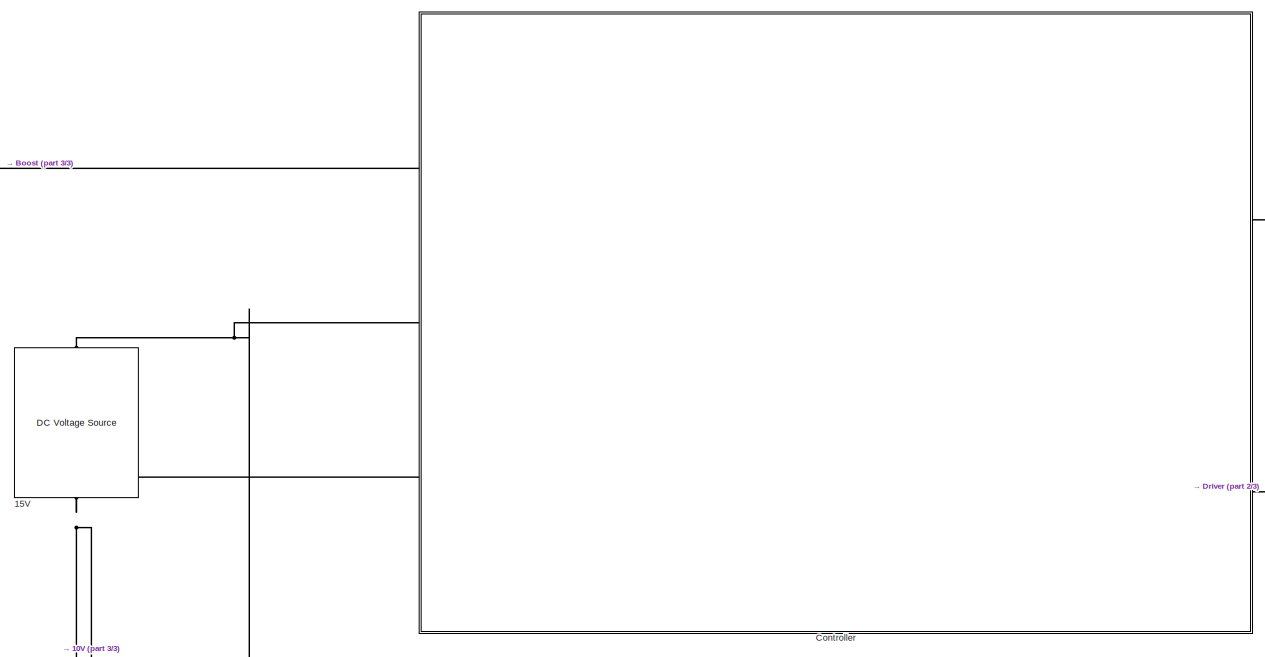
[diagram: root canvas - part 1/3, top center region]
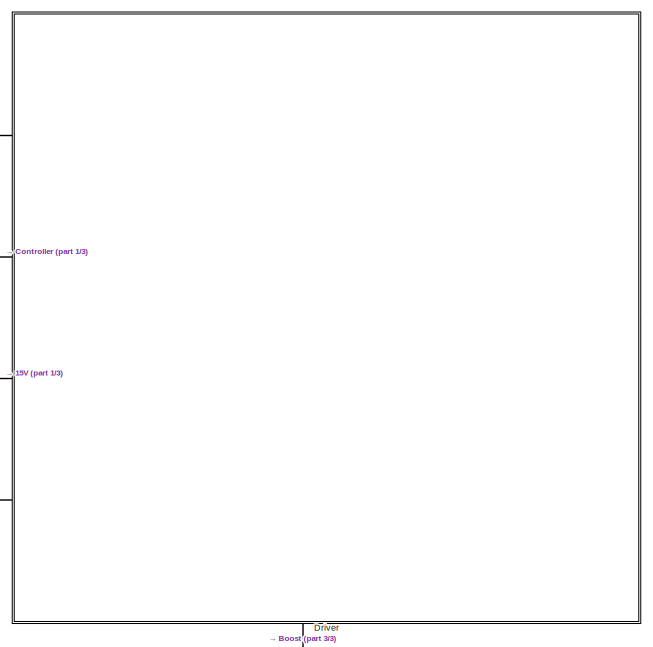
[diagram: root canvas - part 2/3, middle right region]
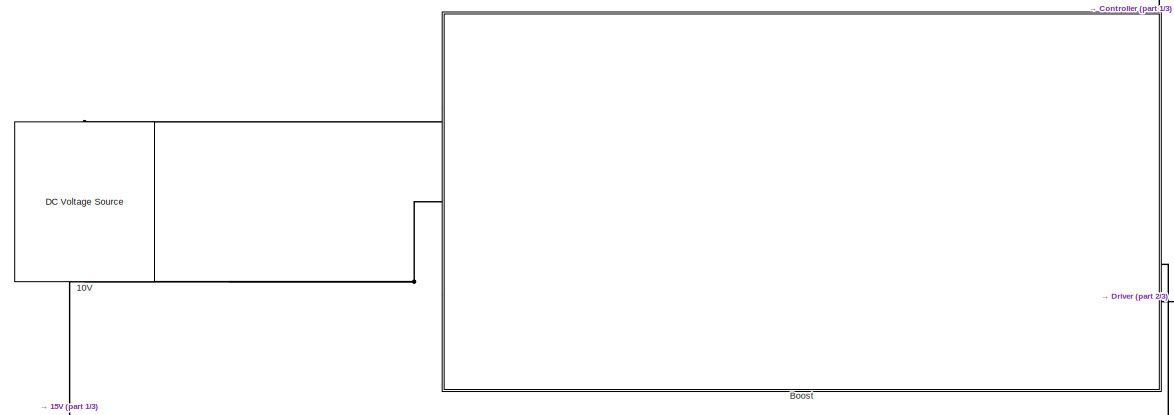
[diagram: root canvas - part 3/3, bottom center region]
MODEL slx_376514da6efc
KIND model
CONFIG AbsTol = auto
CONFIG EnableMultiTasking = off
CONFIG FixedStep = auto
CONFIG MaxStep = auto
CONFIG MinStep = auto
CONFIG RelTol = 1e-3
CONFIG SampleTimeConstraint = Unconstrained
CONFIG SolverName = VariableStepAuto
CONFIG StartTime = 0.0
CONFIG StopTime = 10.0
BLOCK [Reference] 10V  REF=fl_lib/Electrical/Electrical Sources/DC Voltage Source
  NameLocation = right
  Ports = [0, 0, 0, 0, 0, 1, 1]
  SourceBlock = fl_lib/Electrical/Electrical Sources/DC Voltage Source
  SourceProductBaseCode = PW,SS,VE
  SourceType = DC Voltage Source
BLOCK [Reference] 15V  REF=fl_lib/Electrical/Electrical Sources/DC Voltage Source
  NameLocation = right
  Ports = [0, 0, 0, 0, 0, 1, 1]
  SourceBlock = fl_lib/Electrical/Electrical Sources/DC Voltage Source
  SourceProductBaseCode = PW,SS,VE
  SourceType = DC Voltage Source
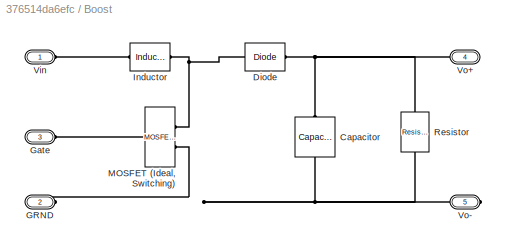
BLOCK [SubSystem] Boost
  PortSchema = {"entries":[{"content":{"sides":[{"content":{"connectorIds":["LConn1","LConn2"]},"type":"ConnectorPlacement.EquallySpacedRectSide","uuid":"ceec2e1e-c5f5-4efd-ab72-704f5c34399d"},{"content":{"connectorIds":["RConn1","RConn2"],"side":"RIGHT"},"type":"ConnectorPlacement.EquallySpacedRectSide","uuid":"ee26e7bf-e74a-427c-96ce-52923afb77ec"},{"content":{"connectorIds":["LConn3"],"side":"TOP"},"type":"Co...<+271ch>
  Ports = [0, 0, 0, 0, 0, 3, 2]
  RequestExecContextInheritance = off
BLOCK [Reference] Boost/Capacitor  REF=fl_lib/Electrical/Electrical Elements/Capacitor
  NameLocation = left
  Ports = [0, 0, 0, 0, 0, 1, 1]
  SourceBlock = fl_lib/Electrical/Electrical Elements/Capacitor
  SourceProductBaseCode = PW,SS,VE
  SourceType = Capacitor
BLOCK [Reference] Boost/Diode  REF=ee_lib/Semiconductors &
Converters/Diode
  Ports = [0, 0, 0, 0, 0, 1, 1]
  SourceBlock = ee_lib/Semiconductors &\nConverters/Diode
  SourceProductBaseCode = PS
  SourceType = Diode
BLOCK [PMIOPort] Boost/GRND
  Port = 2
  Side = Left
BLOCK [PMIOPort] Boost/Gate
  Port = 3
  Side = Left
BLOCK [Reference] Boost/Inductor  REF=fl_lib/Electrical/Electrical Elements/Inductor
  Ports = [0, 0, 0, 0, 0, 1, 1]
  SourceBlock = fl_lib/Electrical/Electrical Elements/Inductor
  SourceProductBaseCode = PW,SS,VE
  SourceType = Inductor
BLOCK [Reference] Boost/MOSFET (Ideal, Switching)  REF=ee_lib/Semiconductors &
Converters/MOSFET
(Ideal,
Switching)
  Ports = [0, 0, 0, 0, 0, 1, 2]
  SourceBlock = ee_lib/Semiconductors &\nConverters/MOSFET\n(Ideal,\nSwitching)
  SourceProductBaseCode = PS
  SourceType = MOSFET\n(Ideal,\nSwitching)
BLOCK [Reference] Boost/Resistor  REF=fl_lib/Electrical/Electrical Elements/Resistor
  NameLocation = left
  Ports = [0, 0, 0, 0, 0, 1, 1]
  SourceBlock = fl_lib/Electrical/Electrical Elements/Resistor
  SourceProductBaseCode = PW,SS,VE
  SourceType = Resistor
BLOCK [PMIOPort] Boost/Vin
  Side = Left
BLOCK [PMIOPort] Boost/Vo+
  NameLocation = top
  Port = 4
  Side = Right
BLOCK [PMIOPort] Boost/Vo-
  NameLocation = top
  Port = 5
  Side = Right
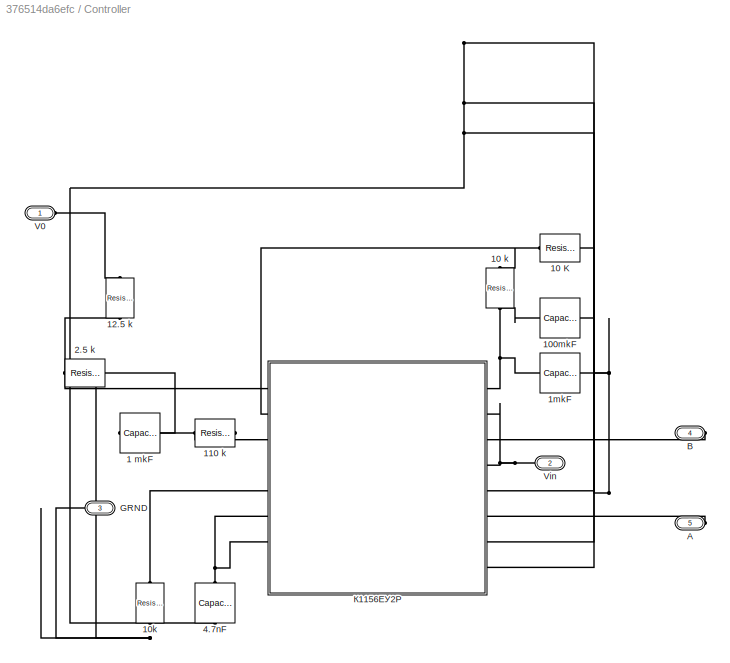
BLOCK [SubSystem] Controller
  Ports = [0, 0, 0, 0, 0, 3, 2]
  RequestExecContextInheritance = off
BLOCK [Reference] Controller/1 mkF  REF=fl_lib/Electrical/Electrical Elements/Capacitor
  NameLocation = top
  Ports = [0, 0, 0, 0, 0, 1, 1]
  SourceBlock = fl_lib/Electrical/Electrical Elements/Capacitor
  SourceProductBaseCode = PW,SS,VE
  SourceType = Capacitor
BLOCK [Reference] Controller/10 K  REF=fl_lib/Electrical/Electrical Elements/Resistor
  Ports = [0, 0, 0, 0, 0, 1, 1]
  SourceBlock = fl_lib/Electrical/Electrical Elements/Resistor
  SourceProductBaseCode = PW,SS,VE
  SourceType = Resistor
BLOCK [Reference] Controller/10 k  REF=fl_lib/Electrical/Electrical Elements/Resistor
  NameLocation = right
  Ports = [0, 0, 0, 0, 0, 1, 1]
  SourceBlock = fl_lib/Electrical/Electrical Elements/Resistor
  SourceProductBaseCode = PW,SS,VE
  SourceType = Resistor
BLOCK [Reference] Controller/100mkF  REF=fl_lib/Electrical/Electrical Elements/Capacitor
  Ports = [0, 0, 0, 0, 0, 1, 1]
  SourceBlock = fl_lib/Electrical/Electrical Elements/Capacitor
  SourceProductBaseCode = PW,SS,VE
  SourceType = Capacitor
BLOCK [Reference] Controller/10k  REF=fl_lib/Electrical/Electrical Elements/Resistor
  NameLocation = left
  Ports = [0, 0, 0, 0, 0, 1, 1]
  SourceBlock = fl_lib/Electrical/Electrical Elements/Resistor
  SourceProductBaseCode = PW,SS,VE
  SourceType = Resistor
BLOCK [Reference] Controller/110 k  REF=fl_lib/Electrical/Electrical Elements/Resistor
  NameLocation = top
  Ports = [0, 0, 0, 0, 0, 1, 1]
  SourceBlock = fl_lib/Electrical/Electrical Elements/Resistor
  SourceProductBaseCode = PW,SS,VE
  SourceType = Resistor
BLOCK [Reference] Controller/12.5 k  REF=fl_lib/Electrical/Electrical Elements/Resistor
  NameLocation = left
  Ports = [0, 0, 0, 0, 0, 1, 1]
  SourceBlock = fl_lib/Electrical/Electrical Elements/Resistor
  SourceProductBaseCode = PW,SS,VE
  SourceType = Resistor
BLOCK [Reference] Controller/1mkF  REF=fl_lib/Electrical/Electrical Elements/Capacitor
  Ports = [0, 0, 0, 0, 0, 1, 1]
  SourceBlock = fl_lib/Electrical/Electrical Elements/Capacitor
  SourceProductBaseCode = PW,SS,VE
  SourceType = Capacitor
BLOCK [Reference] Controller/2.5 k  REF=fl_lib/Electrical/Electrical Elements/Resistor
  NameLocation = top
  Ports = [0, 0, 0, 0, 0, 1, 1]
  SourceBlock = fl_lib/Electrical/Electrical Elements/Resistor
  SourceProductBaseCode = PW,SS,VE
  SourceType = Resistor
BLOCK [Reference] Controller/4.7nF  REF=fl_lib/Electrical/Electrical Elements/Capacitor
  NameLocation = left
  Ports = [0, 0, 0, 0, 0, 1, 1]
  SourceBlock = fl_lib/Electrical/Electrical Elements/Capacitor
  SourceProductBaseCode = PW,SS,VE
  SourceType = Capacitor
BLOCK [PMIOPort] Controller/A
  NameLocation = top
  Port = 5
  Side = Right
BLOCK [PMIOPort] Controller/B
  NameLocation = top
  Port = 4
  Side = Right
BLOCK [PMIOPort] Controller/GRND
  NameLocation = top
  Port = 3
  Side = Left
BLOCK [PMIOPort] Controller/V0
  Side = Left
BLOCK [PMIOPort] Controller/Vin
  NameLocation = top
  Port = 2
  Side = Left
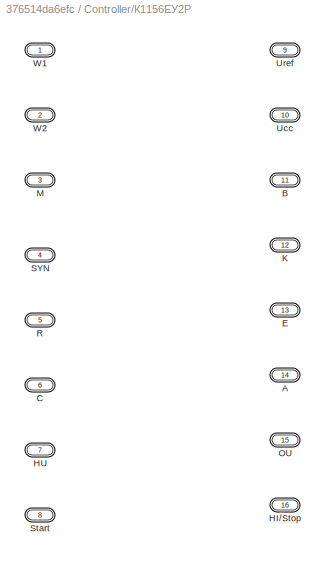
BLOCK [SubSystem] Controller/К1156ЕУ2Р
  Ports = [0, 0, 0, 0, 0, 8, 8]
  RequestExecContextInheritance = off
BLOCK [PMIOPort] Controller/К1156ЕУ2Р/A
  NameLocation = top
  Port = 14
  Side = Right
BLOCK [PMIOPort] Controller/К1156ЕУ2Р/B
  NameLocation = top
  Port = 11
  Side = Right
BLOCK [PMIOPort] Controller/К1156ЕУ2Р/C
  Port = 6
  Side = Left
BLOCK [PMIOPort] Controller/К1156ЕУ2Р/E
  NameLocation = top
  Port = 13
  Side = Right
BLOCK [PMIOPort] Controller/К1156ЕУ2Р/HI//Stop
  NameLocation = top
  Port = 16
  Side = Right
BLOCK [PMIOPort] Controller/К1156ЕУ2Р/HU
  Port = 7
  Side = Left
BLOCK [PMIOPort] Controller/К1156ЕУ2Р/K
  NameLocation = top
  Port = 12
  Side = Right
BLOCK [PMIOPort] Controller/К1156ЕУ2Р/M
  Port = 3
  Side = Left
BLOCK [PMIOPort] Controller/К1156ЕУ2Р/OU
  NameLocation = top
  Port = 15
  Side = Right
BLOCK [PMIOPort] Controller/К1156ЕУ2Р/R
  Port = 5
  Side = Left
BLOCK [PMIOPort] Controller/К1156ЕУ2Р/SYN
  Port = 4
  Side = Left
BLOCK [PMIOPort] Controller/К1156ЕУ2Р/Start
  Port = 8
  Side = Left
BLOCK [PMIOPort] Controller/К1156ЕУ2Р/Ucc
  NameLocation = top
  Port = 10
  Side = Right
BLOCK [PMIOPort] Controller/К1156ЕУ2Р/Uref
  NameLocation = top
  Port = 9
  Side = Right
BLOCK [PMIOPort] Controller/К1156ЕУ2Р/W1
  Side = Left
BLOCK [PMIOPort] Controller/К1156ЕУ2Р/W2
  Port = 2
  Side = Left
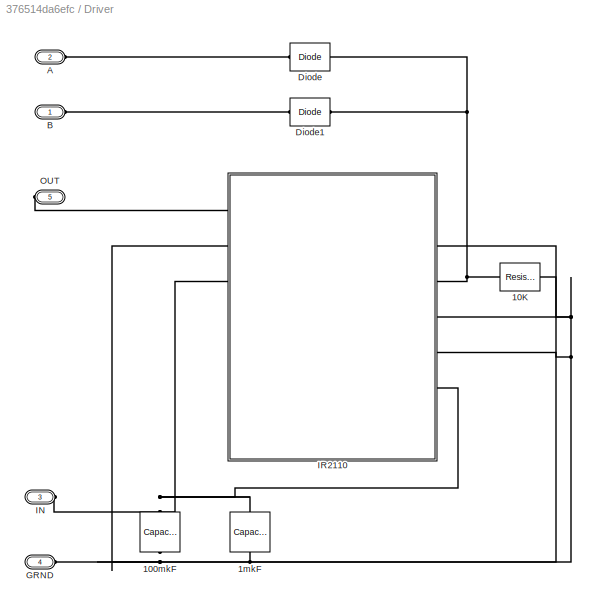
BLOCK [SubSystem] Driver
  Ports = [0, 0, 0, 0, 0, 4, 1]
  RequestExecContextInheritance = off
BLOCK [Reference] Driver/100mkF  REF=fl_lib/Electrical/Electrical Elements/Capacitor
  NameLocation = left
  Ports = [0, 0, 0, 0, 0, 1, 1]
  SourceBlock = fl_lib/Electrical/Electrical Elements/Capacitor
  SourceProductBaseCode = PW,SS,VE
  SourceType = Capacitor
BLOCK [Reference] Driver/10K  REF=fl_lib/Electrical/Electrical Elements/Resistor
  Ports = [0, 0, 0, 0, 0, 1, 1]
  SourceBlock = fl_lib/Electrical/Electrical Elements/Resistor
  SourceProductBaseCode = PW,SS,VE
  SourceType = Resistor
BLOCK [Reference] Driver/1mkF  REF=fl_lib/Electrical/Electrical Elements/Capacitor
  NameLocation = left
  Ports = [0, 0, 0, 0, 0, 1, 1]
  SourceBlock = fl_lib/Electrical/Electrical Elements/Capacitor
  SourceProductBaseCode = PW,SS,VE
  SourceType = Capacitor
BLOCK [PMIOPort] Driver/A
  Port = 2
  Side = Left
BLOCK [PMIOPort] Driver/B
  Side = Left
BLOCK [Reference] Driver/Diode  REF=ee_lib/Semiconductors &
Converters/Diode
  Ports = [0, 0, 0, 0, 0, 1, 1]
  SourceBlock = ee_lib/Semiconductors &\nConverters/Diode
  SourceProductBaseCode = PS
  SourceType = Diode
BLOCK [Reference] Driver/Diode1  REF=ee_lib/Semiconductors &
Converters/Diode
  Ports = [0, 0, 0, 0, 0, 1, 1]
  SourceBlock = ee_lib/Semiconductors &\nConverters/Diode
  SourceProductBaseCode = PS
  SourceType = Diode
BLOCK [PMIOPort] Driver/GRND
  Port = 4
  Side = Left
BLOCK [PMIOPort] Driver/IN
  Port = 3
  Side = Left
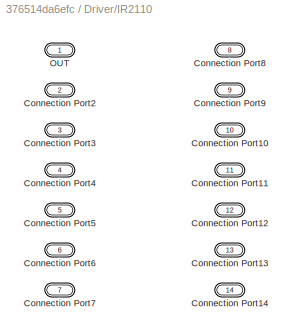
BLOCK [SubSystem] Driver/IR2110
  Ports = [0, 0, 0, 0, 0, 7, 7]
  RequestExecContextInheritance = off
BLOCK [PMIOPort] Driver/IR2110/Connection Port10
  NameLocation = top
  Port = 10
  Side = Right
BLOCK [PMIOPort] Driver/IR2110/Connection Port11
  NameLocation = top
  Port = 11
  Side = Right
BLOCK [PMIOPort] Driver/IR2110/Connection Port12
  NameLocation = top
  Port = 12
  Side = Right
BLOCK [PMIOPort] Driver/IR2110/Connection Port13
  NameLocation = top
  Port = 13
  Side = Right
BLOCK [PMIOPort] Driver/IR2110/Connection Port14
  NameLocation = top
  Port = 14
  Side = Right
BLOCK [PMIOPort] Driver/IR2110/Connection Port2
  Port = 2
  Side = Left
BLOCK [PMIOPort] Driver/IR2110/Connection Port3
  Port = 3
  Side = Left
BLOCK [PMIOPort] Driver/IR2110/Connection Port4
  Port = 4
  Side = Left
BLOCK [PMIOPort] Driver/IR2110/Connection Port5
  Port = 5
  Side = Left
BLOCK [PMIOPort] Driver/IR2110/Connection Port6
  Port = 6
  Side = Left
BLOCK [PMIOPort] Driver/IR2110/Connection Port7
  Port = 7
  Side = Left
BLOCK [PMIOPort] Driver/IR2110/Connection Port8
  NameLocation = top
  Port = 8
  Side = Right
BLOCK [PMIOPort] Driver/IR2110/Connection Port9
  NameLocation = top
  Port = 9
  Side = Right
BLOCK [PMIOPort] Driver/IR2110/OUT
  Side = Left
BLOCK [PMIOPort] Driver/OUT
  Port = 5
  Side = Right
PLINE 10V:LConn1 -- Boost:LConn1
PNET net1: 10V:RConn1 -- 15V:RConn1 -- Boost:LConn2 -- Boost:RConn2 -- Controller:LConn3 -- Driver:LConn4
PNET net2: 15V:LConn1 -- Controller:LConn2 -- Driver:LConn3
PNET net3: Boost/Capacitor:LConn1 -- Boost/Diode:RConn1 -- Boost/Resistor:LConn1 -- Boost/Vo+:RConn1
PNET net4: Boost/Capacitor:RConn1 -- Boost/GRND:RConn1 -- Boost/MOSFET (Ideal, Switching):RConn2 -- Boost/Resistor:RConn1 -- Boost/Vo-:RConn1
PNET net5: Boost/Diode:LConn1 -- Boost/Inductor:RConn1 -- Boost/MOSFET (Ideal, Switching):RConn1
PLINE Boost/Gate:RConn1 -- Boost/MOSFET (Ideal, Switching):LConn1
PLINE Boost/Inductor:LConn1 -- Boost/Vin:RConn1
PLINE Boost:LConn3 -- Driver:RConn1
PLINE Boost:RConn1 -- Controller:LConn1
PLINE Controller/1 mkF:LConn1 -- Controller/110 k:RConn1
PNET net6: Controller/1 mkF:RConn1 -- Controller/12.5 k:RConn1 -- Controller/2.5 k:LConn1 -- Controller/К1156ЕУ2Р:LConn1
PNET net7: Controller/10 K:LConn1 -- Controller/10 k:RConn1 -- Controller/К1156ЕУ2Р:LConn2
PNET net8: Controller/10 K:RConn1 -- Controller/100mkF:RConn1 -- Controller/10k:RConn1 -- Controller/1mkF:RConn1 -- Controller/2.5 k:RConn1 -- Controller/4.7nF:RConn1 -- Controller/GRND:RConn1 -- Controller/К1156ЕУ2Р:RConn5 -- Controller/К1156ЕУ2Р:RConn7 -- Controller/К1156ЕУ2Р:RConn8
PNET net9: Controller/10 k:LConn1 -- Controller/100mkF:LConn1 -- Controller/1mkF:LConn1 -- Controller/К1156ЕУ2Р:RConn1
PLINE Controller/10k:LConn1 -- Controller/К1156ЕУ2Р:LConn5
PLINE Controller/110 k:LConn1 -- Controller/К1156ЕУ2Р:LConn3
PLINE Controller/12.5 k:LConn1 -- Controller/V0:RConn1
PNET net10: Controller/4.7nF:LConn1 -- Controller/К1156ЕУ2Р:LConn6 -- Controller/К1156ЕУ2Р:LConn7
PLINE Controller/A:RConn1 -- Controller/К1156ЕУ2Р:RConn6
PLINE Controller/B:RConn1 -- Controller/К1156ЕУ2Р:RConn3
PNET net11: Controller/Vin:RConn1 -- Controller/К1156ЕУ2Р:RConn2 -- Controller/К1156ЕУ2Р:RConn4
PLINE Controller:RConn1 -- Driver:LConn1
PLINE Controller:RConn2 -- Driver:LConn2
PNET net12: Driver/100mkF:LConn1 -- Driver/1mkF:LConn1 -- Driver/IN:RConn1 -- Driver/IR2110:LConn3 -- Driver/IR2110:RConn6
PNET net13: Driver/100mkF:RConn1 -- Driver/10K:RConn1 -- Driver/1mkF:RConn1 -- Driver/GRND:RConn1 -- Driver/IR2110:LConn2 -- Driver/IR2110:RConn2 -- Driver/IR2110:RConn4 -- Driver/IR2110:RConn5
PNET net14: Driver/10K:LConn1 -- Driver/Diode1:RConn1 -- Driver/Diode:RConn1 -- Driver/IR2110:RConn3
PLINE Driver/A:RConn1 -- Driver/Diode:LConn1
PLINE Driver/B:RConn1 -- Driver/Diode1:LConn1
PLINE Driver/IR2110:LConn1 -- Driver/OUT:RConn1
note: PNET lines group multi-terminal physical nets as a canonical sorted terminal list (undirected conserving connections); 2-terminal nets keep the pairwise PLINE form
